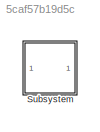
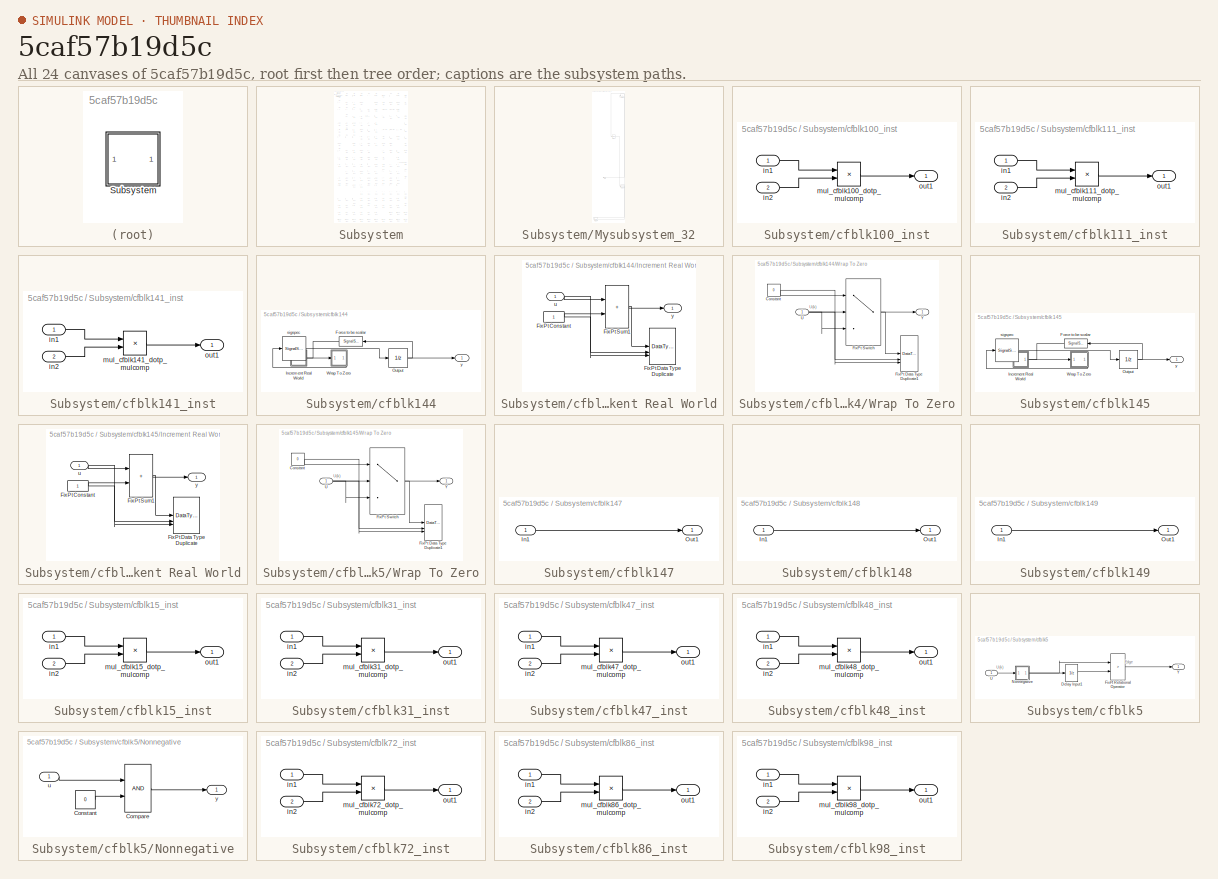
[diagram: thumbnail index - all 24 canvases of the model, root first then tree order]
MODEL slx_5caf57b19d5c
KIND model
CONFIG AbsTol = auto
CONFIG EnableMultiTasking = off
CONFIG FixedStep = auto
CONFIG MaxStep = auto
CONFIG MinStep = auto
CONFIG RelTol = 1e-3
CONFIG SampleTimeConstraint = Unconstrained
CONFIG SolverName = VariableStepAuto
CONFIG StartTime = 0.0
CONFIG StopTime = 10.0
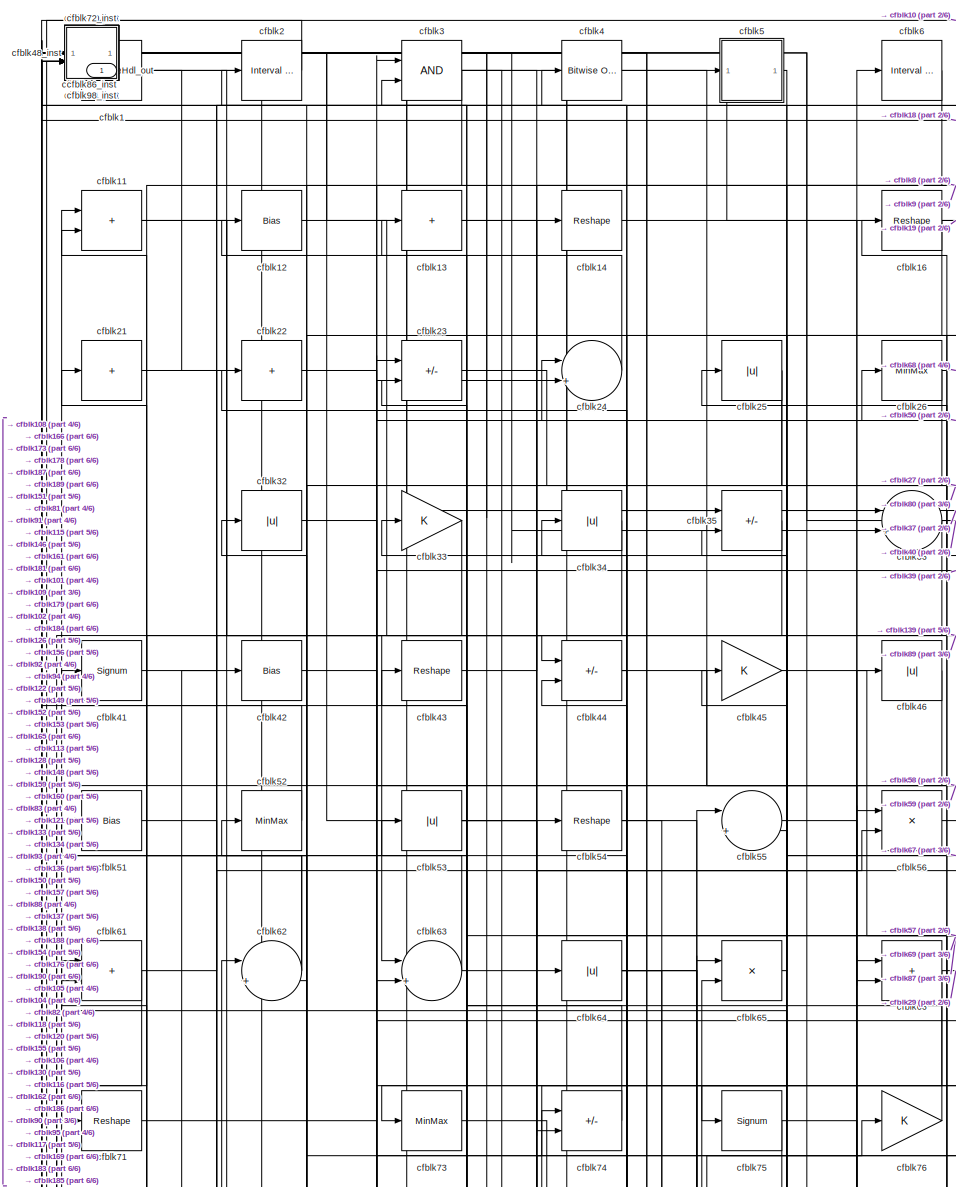
[diagram: Subsystem - part 1/6, top left region]
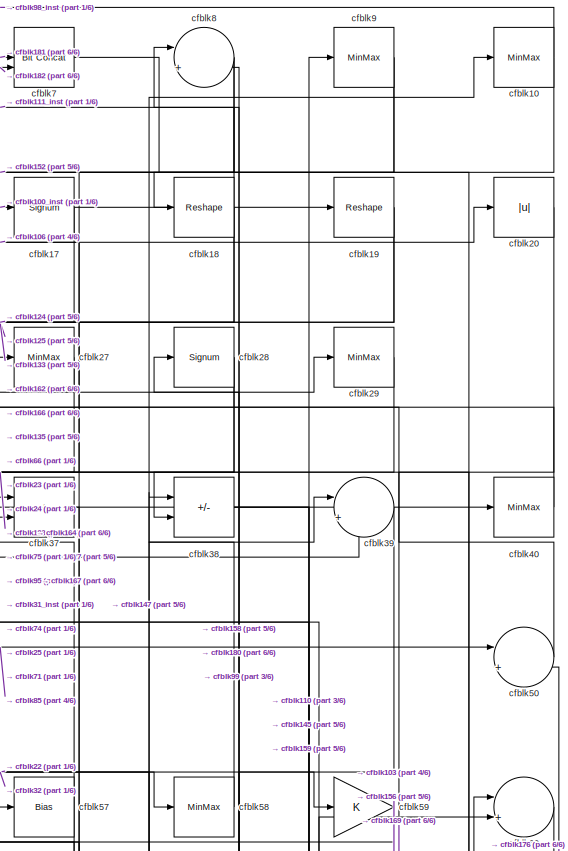
[diagram: Subsystem - part 2/6, top right region]
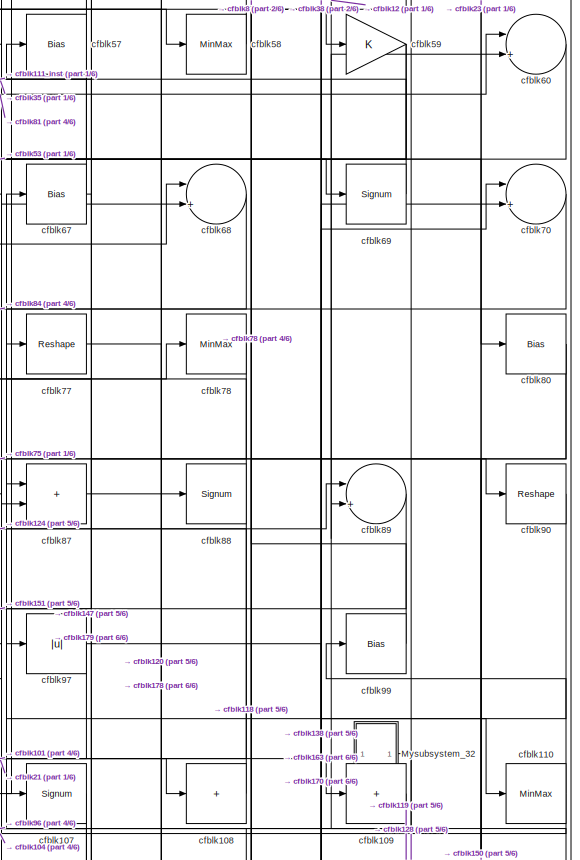
[diagram: Subsystem - part 3/6, middle right region]
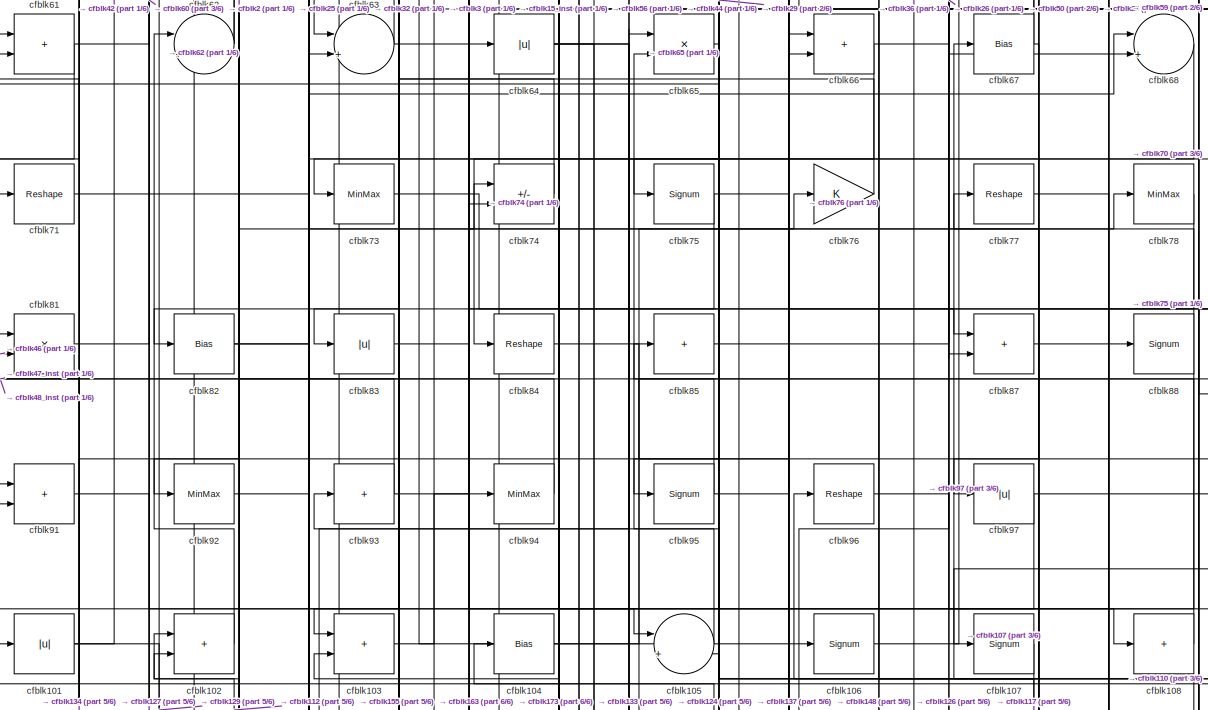
[diagram: Subsystem - part 4/6, full width, middle band]
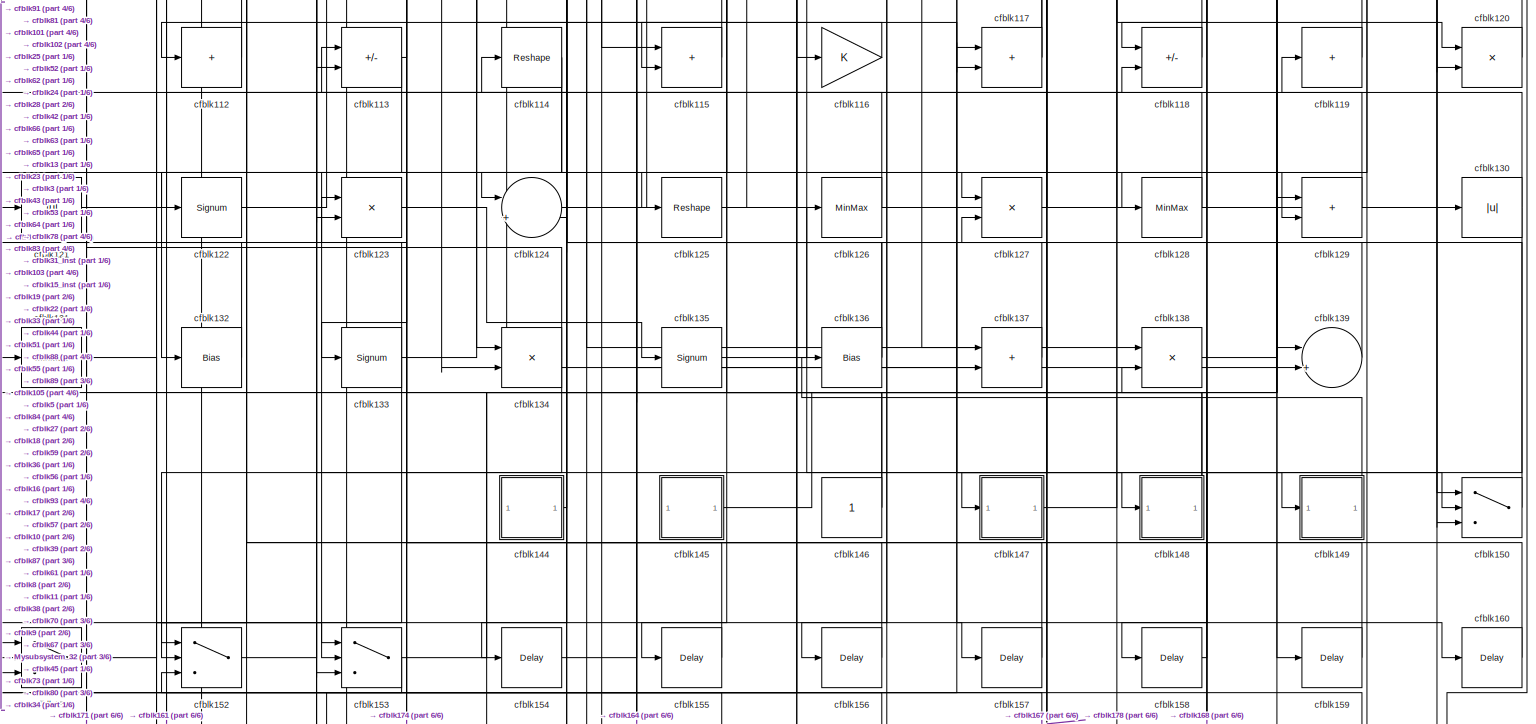
[diagram: Subsystem - part 5/6, full width, bottom band]
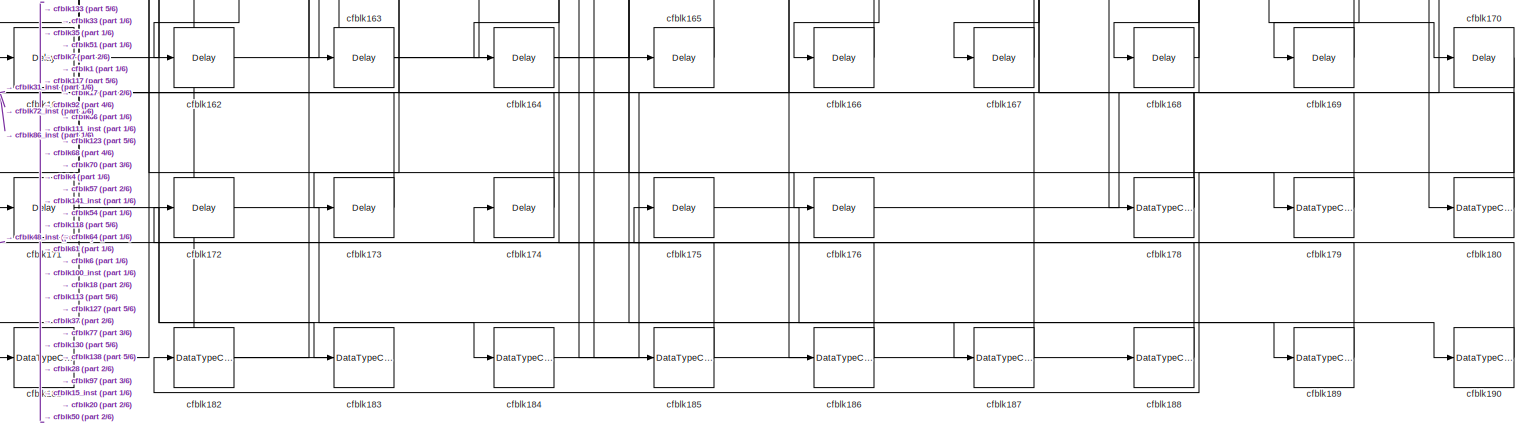
[diagram: Subsystem - part 6/6, full width, bottom band]
BLOCK [SubSystem] Subsystem
BLOCK [Outport] Subsystem/Hdl_out
  OutDataTypeStr = uint8
  SampleTime = 1
BLOCK [SubSystem] Subsystem/Mysubsystem_32
BLOCK [Outport] Subsystem/Mysubsystem_32/Out1
  SampleTime = 1
BLOCK [Reshape] Subsystem/Mysubsystem_32/cfblk140
BLOCK [Delay] Subsystem/Mysubsystem_32/cfblk177
  InputPortMap = u0
  SampleTime = 1
BLOCK [Sum] Subsystem/Mysubsystem_32/cfblk30
  IconShape = rectangular
  Inputs = +
BLOCK [Signum] Subsystem/Mysubsystem_32/cfblk79
BLOCK [Reference] Subsystem/cfblk1  REF=simulink/Logic and Bit
Operations/Bit Clear
  LibrarySourceBlock = hdlsllib/Logic and Bit\nOperations/Bit Clear
  SourceBlock = simulink/Logic and Bit\nOperations/Bit Clear
  SourceType = Bit Clear
BLOCK [MinMax] Subsystem/cfblk10
  OutDataTypeStr = uint8
BLOCK [SubSystem] Subsystem/cfblk100_inst
BLOCK [Inport] Subsystem/cfblk100_inst/in1
  OutDataTypeStr = uint8
  SampleTime = 1
BLOCK [Inport] Subsystem/cfblk100_inst/in2
  OutDataTypeStr = uint8
  Port = 2
  SampleTime = 1
BLOCK [Product] Subsystem/cfblk100_inst/mul_cfblk100_dotp_mulcomp
  Inputs = **
  OutDataTypeStr = uint8
  SampleTime = 1
BLOCK [Outport] Subsystem/cfblk100_inst/out1
  OutDataTypeStr = uint8
  SampleTime = 1
BLOCK [Abs] Subsystem/cfblk101
  OutDataTypeStr = uint8
  SaturateOnIntegerOverflow = off
BLOCK [Sum] Subsystem/cfblk102
  IconShape = rectangular
  OutDataTypeStr = uint8
BLOCK [Sum] Subsystem/cfblk103
  IconShape = rectangular
  OutDataTypeStr = uint8
BLOCK [Bias] Subsystem/cfblk104
  Bias = 0.0
  SaturateOnIntegerOverflow = off
BLOCK [Sum] Subsystem/cfblk105
  Inputs = |++
  OutDataTypeStr = uint8
BLOCK [Signum] Subsystem/cfblk106
BLOCK [Signum] Subsystem/cfblk107
BLOCK [Sum] Subsystem/cfblk108
  IconShape = rectangular
  Inputs = +
  OutDataTypeStr = uint8
BLOCK [Sum] Subsystem/cfblk109
  IconShape = rectangular
  Inputs = +
  OutDataTypeStr = uint8
BLOCK [Sum] Subsystem/cfblk11
  IconShape = rectangular
  OutDataTypeStr = uint8
BLOCK [MinMax] Subsystem/cfblk110
  OutDataTypeStr = uint8
BLOCK [SubSystem] Subsystem/cfblk111_inst
BLOCK [Inport] Subsystem/cfblk111_inst/in1
  OutDataTypeStr = uint8
  SampleTime = 1
BLOCK [Inport] Subsystem/cfblk111_inst/in2
  OutDataTypeStr = uint8
  Port = 2
  SampleTime = 1
BLOCK [Product] Subsystem/cfblk111_inst/mul_cfblk111_dotp_mulcomp
  Inputs = **
  OutDataTypeStr = uint8
  SampleTime = 1
BLOCK [Outport] Subsystem/cfblk111_inst/out1
  OutDataTypeStr = uint8
  SampleTime = 1
BLOCK [Sum] Subsystem/cfblk112
  IconShape = rectangular
  Inputs = +
  OutDataTypeStr = uint8
BLOCK [Sum] Subsystem/cfblk113
  IconShape = rectangular
  Inputs = +-
  OutDataTypeStr = uint8
BLOCK [Reshape] Subsystem/cfblk114
BLOCK [Sum] Subsystem/cfblk115
  IconShape = rectangular
  OutDataTypeStr = uint8
BLOCK [Gain] Subsystem/cfblk116
  OutDataTypeStr = uint8
BLOCK [Sum] Subsystem/cfblk117
  IconShape = rectangular
  OutDataTypeStr = uint8
BLOCK [Sum] Subsystem/cfblk118
  IconShape = rectangular
  Inputs = +-
  OutDataTypeStr = uint8
BLOCK [Sum] Subsystem/cfblk119
  IconShape = rectangular
  Inputs = +
  OutDataTypeStr = uint8
BLOCK [Bias] Subsystem/cfblk12
  Bias = 0.0
  SaturateOnIntegerOverflow = off
BLOCK [Product] Subsystem/cfblk120
  Inputs = */
  OutDataTypeStr = uint8
  RndMeth = Zero
  SaturateOnIntegerOverflow = on
BLOCK [Abs] Subsystem/cfblk121
  OutDataTypeStr = uint8
  SaturateOnIntegerOverflow = off
BLOCK [Signum] Subsystem/cfblk122
BLOCK [Product] Subsystem/cfblk123
  Inputs = */
  OutDataTypeStr = uint8
  RndMeth = Zero
  SaturateOnIntegerOverflow = on
BLOCK [Sum] Subsystem/cfblk124
  Inputs = |++
  OutDataTypeStr = uint8
BLOCK [Reshape] Subsystem/cfblk125
BLOCK [MinMax] Subsystem/cfblk126
  OutDataTypeStr = uint8
BLOCK [Product] Subsystem/cfblk127
  Inputs = */
  OutDataTypeStr = uint8
  RndMeth = Zero
  SaturateOnIntegerOverflow = on
BLOCK [MinMax] Subsystem/cfblk128
  OutDataTypeStr = uint8
BLOCK [Sum] Subsystem/cfblk129
  IconShape = rectangular
  OutDataTypeStr = uint8
BLOCK [Sum] Subsystem/cfblk13
  IconShape = rectangular
  Inputs = +
  OutDataTypeStr = uint8
BLOCK [Abs] Subsystem/cfblk130
  OutDataTypeStr = uint8
  SaturateOnIntegerOverflow = off
BLOCK [MinMax] Subsystem/cfblk131
  OutDataTypeStr = uint8
BLOCK [Bias] Subsystem/cfblk132
  Bias = 0.0
  SaturateOnIntegerOverflow = off
BLOCK [Signum] Subsystem/cfblk133
BLOCK [Product] Subsystem/cfblk134
  Inputs = */
  OutDataTypeStr = uint8
  RndMeth = Zero
  SaturateOnIntegerOverflow = on
BLOCK [Signum] Subsystem/cfblk135
BLOCK [Bias] Subsystem/cfblk136
  Bias = 0.0
  SaturateOnIntegerOverflow = off
BLOCK [Sum] Subsystem/cfblk137
  IconShape = rectangular
  OutDataTypeStr = uint8
BLOCK [Product] Subsystem/cfblk138
  Inputs = */
  OutDataTypeStr = uint8
  RndMeth = Zero
  SaturateOnIntegerOverflow = on
BLOCK [Sum] Subsystem/cfblk139
  Inputs = |++
  OutDataTypeStr = uint8
BLOCK [Reshape] Subsystem/cfblk14
BLOCK [SubSystem] Subsystem/cfblk141_inst
BLOCK [Inport] Subsystem/cfblk141_inst/in1
  OutDataTypeStr = uint8
  SampleTime = 1
BLOCK [Inport] Subsystem/cfblk141_inst/in2
  OutDataTypeStr = uint8
  Port = 2
  SampleTime = 1
BLOCK [Product] Subsystem/cfblk141_inst/mul_cfblk141_dotp_mulcomp
  Inputs = **
  OutDataTypeStr = uint8
  SampleTime = 1
BLOCK [Outport] Subsystem/cfblk141_inst/out1
  OutDataTypeStr = uint8
  SampleTime = 1
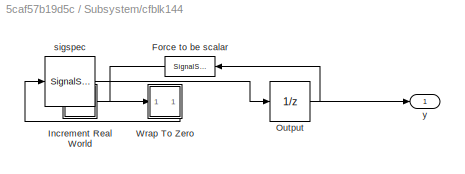
BLOCK [SubSystem] Subsystem/cfblk144
BLOCK [SignalSpecification] Subsystem/cfblk144/Force to be scalar
  Dimensions = 1
  DisableCoverage = on
BLOCK [SubSystem] Subsystem/cfblk144/Increment Real World
BLOCK [Constant] Subsystem/cfblk144/Increment Real World/FixPt Constant
  DisableCoverage = on
  OutDataTypeStr = Inherit: Inherit via back propagation
  SampleTime = -1
BLOCK [DataTypeDuplicate] Subsystem/cfblk144/Increment Real World/FixPt Data Type Duplicate
  DisableCoverage = on
  NumInputPorts = 3
BLOCK [Sum] Subsystem/cfblk144/Increment Real World/FixPt Sum1
  IconShape = rectangular
  InputSameDT = on
  LockScale = on
  OutDataTypeStr = Inherit: Inherit via back propagation
BLOCK [Inport] Subsystem/cfblk144/Increment Real World/u
  OutDataTypeStr = uint16
  SampleTime = 1
BLOCK [Outport] Subsystem/cfblk144/Increment Real World/y
  SampleTime = 1
BLOCK [UnitDelay] Subsystem/cfblk144/Output
  HasFrameUpgradeWarning = on
  InitialCondition = 0.0
  SampleTime = tsamp
BLOCK [SubSystem] Subsystem/cfblk144/Wrap To Zero
BLOCK [Constant] Subsystem/cfblk144/Wrap To Zero/Constant
  DisableCoverage = on
  OutDataTypeStr = Inherit: Inherit via back propagation
  SampleTime = -1
  Value = 0
BLOCK [DataTypeDuplicate] Subsystem/cfblk144/Wrap To Zero/FixPt Data Type Duplicate1
  DisableCoverage = on
  NumInputPorts = 3
BLOCK [Switch] Subsystem/cfblk144/Wrap To Zero/FixPt Switch
  Criteria = u2 > Threshold
  InputSameDT = off
  OutDataTypeStr = Inherit: Inherit via back propagation
  SaturateOnIntegerOverflow = off
  Threshold = Threshold
  ZeroCross = off
BLOCK [Inport] Subsystem/cfblk144/Wrap To Zero/U
  OutDataTypeStr = uint16
  SampleTime = 1
BLOCK [Outport] Subsystem/cfblk144/Wrap To Zero/Y
  SampleTime = 1
BLOCK [SignalSpecification] Subsystem/cfblk144/sigspec
  Dimensions = 1
  OutDataTypeStr = uint16
BLOCK [Outport] Subsystem/cfblk144/y
  SampleTime = 1
BLOCK [SubSystem] Subsystem/cfblk145
BLOCK [SignalSpecification] Subsystem/cfblk145/Force to be scalar
  Dimensions = 1
  DisableCoverage = on
BLOCK [SubSystem] Subsystem/cfblk145/Increment Real World
BLOCK [Constant] Subsystem/cfblk145/Increment Real World/FixPt Constant
  DisableCoverage = on
  OutDataTypeStr = Inherit: Inherit via back propagation
  SampleTime = -1
BLOCK [DataTypeDuplicate] Subsystem/cfblk145/Increment Real World/FixPt Data Type Duplicate
  DisableCoverage = on
  NumInputPorts = 3
BLOCK [Sum] Subsystem/cfblk145/Increment Real World/FixPt Sum1
  IconShape = rectangular
  InputSameDT = on
  LockScale = on
  OutDataTypeStr = Inherit: Inherit via back propagation
BLOCK [Inport] Subsystem/cfblk145/Increment Real World/u
  OutDataTypeStr = uint8
  SampleTime = 1
BLOCK [Outport] Subsystem/cfblk145/Increment Real World/y
  SampleTime = 1
BLOCK [UnitDelay] Subsystem/cfblk145/Output
  HasFrameUpgradeWarning = on
  InitialCondition = 0.0
  SampleTime = tsamp
BLOCK [SubSystem] Subsystem/cfblk145/Wrap To Zero
BLOCK [Constant] Subsystem/cfblk145/Wrap To Zero/Constant
  DisableCoverage = on
  OutDataTypeStr = Inherit: Inherit via back propagation
  SampleTime = -1
  Value = 0
BLOCK [DataTypeDuplicate] Subsystem/cfblk145/Wrap To Zero/FixPt Data Type Duplicate1
  DisableCoverage = on
  NumInputPorts = 3
BLOCK [Switch] Subsystem/cfblk145/Wrap To Zero/FixPt Switch
  Criteria = u2 > Threshold
  InputSameDT = off
  OutDataTypeStr = Inherit: Inherit via back propagation
  SaturateOnIntegerOverflow = off
  Threshold = Threshold
  ZeroCross = off
BLOCK [Inport] Subsystem/cfblk145/Wrap To Zero/U
  OutDataTypeStr = uint8
  SampleTime = 1
BLOCK [Outport] Subsystem/cfblk145/Wrap To Zero/Y
  SampleTime = 1
BLOCK [SignalSpecification] Subsystem/cfblk145/sigspec
  Dimensions = 1
  OutDataTypeStr = uint8
BLOCK [Outport] Subsystem/cfblk145/y
  SampleTime = 1
BLOCK [Constant] Subsystem/cfblk146
  OutDataTypeStr = uint8
  SampleTime = -1
BLOCK [SubSystem] Subsystem/cfblk147
BLOCK [Inport] Subsystem/cfblk147/In1
  OutDataTypeStr = uint8
  PortDimensions = 1
  SampleTime = 1
BLOCK [Outport] Subsystem/cfblk147/Out1
  SampleTime = 1
BLOCK [SubSystem] Subsystem/cfblk148
BLOCK [Inport] Subsystem/cfblk148/In1
  OutDataTypeStr = uint8
  PortDimensions = 1
  SampleTime = 1
BLOCK [Outport] Subsystem/cfblk148/Out1
  SampleTime = 1
BLOCK [SubSystem] Subsystem/cfblk149
BLOCK [Inport] Subsystem/cfblk149/In1
  OutDataTypeStr = uint8
  PortDimensions = 1
  SampleTime = 1
BLOCK [Outport] Subsystem/cfblk149/Out1
  SampleTime = 1
BLOCK [Switch] Subsystem/cfblk150
  InputSameDT = off
  OutDataTypeStr = uint8
  SaturateOnIntegerOverflow = off
BLOCK [Switch] Subsystem/cfblk151
  InputSameDT = off
  OutDataTypeStr = uint8
  SaturateOnIntegerOverflow = off
BLOCK [Switch] Subsystem/cfblk152
  InputSameDT = off
  OutDataTypeStr = uint8
  SaturateOnIntegerOverflow = off
BLOCK [Switch] Subsystem/cfblk153
  InputSameDT = off
  OutDataTypeStr = uint8
  SaturateOnIntegerOverflow = off
BLOCK [Delay] Subsystem/cfblk154
  InputPortMap = u0
  SampleTime = 1
BLOCK [Delay] Subsystem/cfblk155
  InputPortMap = u0
  SampleTime = 1
BLOCK [Delay] Subsystem/cfblk156
  InputPortMap = u0
  SampleTime = 1
BLOCK [Delay] Subsystem/cfblk157
  InputPortMap = u0
  SampleTime = 1
BLOCK [Delay] Subsystem/cfblk158
  InputPortMap = u0
  SampleTime = 1
BLOCK [Delay] Subsystem/cfblk159
  InputPortMap = u0
  SampleTime = 1
BLOCK [SubSystem] Subsystem/cfblk15_inst
BLOCK [Inport] Subsystem/cfblk15_inst/in1
  OutDataTypeStr = uint8
  SampleTime = 1
BLOCK [Inport] Subsystem/cfblk15_inst/in2
  OutDataTypeStr = uint8
  Port = 2
  SampleTime = 1
BLOCK [Product] Subsystem/cfblk15_inst/mul_cfblk15_dotp_mulcomp
  Inputs = **
  OutDataTypeStr = uint8
  SampleTime = 1
BLOCK [Outport] Subsystem/cfblk15_inst/out1
  OutDataTypeStr = uint8
  SampleTime = 1
BLOCK [Reshape] Subsystem/cfblk16
BLOCK [Delay] Subsystem/cfblk160
  InputPortMap = u0
  SampleTime = 1
BLOCK [Delay] Subsystem/cfblk161
  InputPortMap = u0
  SampleTime = 1
BLOCK [Delay] Subsystem/cfblk162
  InputPortMap = u0
  SampleTime = 1
BLOCK [Delay] Subsystem/cfblk163
  InputPortMap = u0
  SampleTime = 1
BLOCK [Delay] Subsystem/cfblk164
  InputPortMap = u0
  SampleTime = 1
BLOCK [Delay] Subsystem/cfblk165
  InputPortMap = u0
  SampleTime = 1
BLOCK [Delay] Subsystem/cfblk166
  InputPortMap = u0
  SampleTime = 1
BLOCK [Delay] Subsystem/cfblk167
  InputPortMap = u0
  SampleTime = 1
BLOCK [Delay] Subsystem/cfblk168
  InputPortMap = u0
  SampleTime = 1
BLOCK [Delay] Subsystem/cfblk169
  InputPortMap = u0
  SampleTime = 1
BLOCK [Signum] Subsystem/cfblk17
BLOCK [Delay] Subsystem/cfblk170
  InputPortMap = u0
  SampleTime = 1
BLOCK [Delay] Subsystem/cfblk171
  InputPortMap = u0
  SampleTime = 1
BLOCK [Delay] Subsystem/cfblk172
  InputPortMap = u0
  SampleTime = 1
BLOCK [Delay] Subsystem/cfblk173
  InputPortMap = u0
  SampleTime = 1
BLOCK [Delay] Subsystem/cfblk174
  InputPortMap = u0
  SampleTime = 1
BLOCK [Delay] Subsystem/cfblk175
  InputPortMap = u0
  SampleTime = 1
BLOCK [Delay] Subsystem/cfblk176
  InputPortMap = u0
  SampleTime = 1
BLOCK [DataTypeConversion] Subsystem/cfblk178
  OutDataTypeStr = uint8
  RndMeth = Floor
  SaturateOnIntegerOverflow = off
BLOCK [DataTypeConversion] Subsystem/cfblk179
  OutDataTypeStr = uint8
  RndMeth = Floor
  SaturateOnIntegerOverflow = off
BLOCK [Reshape] Subsystem/cfblk18
BLOCK [DataTypeConversion] Subsystem/cfblk180
  OutDataTypeStr = uint8
  RndMeth = Floor
  SaturateOnIntegerOverflow = off
BLOCK [DataTypeConversion] Subsystem/cfblk181
  OutDataTypeStr = uint8
  RndMeth = Floor
  SaturateOnIntegerOverflow = off
BLOCK [DataTypeConversion] Subsystem/cfblk182
  OutDataTypeStr = uint8
  RndMeth = Floor
  SaturateOnIntegerOverflow = off
BLOCK [DataTypeConversion] Subsystem/cfblk183
  OutDataTypeStr = uint8
  RndMeth = Floor
  SaturateOnIntegerOverflow = off
BLOCK [DataTypeConversion] Subsystem/cfblk184
  OutDataTypeStr = uint8
  RndMeth = Floor
  SaturateOnIntegerOverflow = off
BLOCK [DataTypeConversion] Subsystem/cfblk185
  OutDataTypeStr = uint8
  RndMeth = Floor
  SaturateOnIntegerOverflow = off
BLOCK [DataTypeConversion] Subsystem/cfblk186
  OutDataTypeStr = uint8
  RndMeth = Floor
  SaturateOnIntegerOverflow = off
BLOCK [DataTypeConversion] Subsystem/cfblk187
  OutDataTypeStr = uint8
  RndMeth = Floor
  SaturateOnIntegerOverflow = off
BLOCK [DataTypeConversion] Subsystem/cfblk188
  OutDataTypeStr = uint8
  RndMeth = Floor
  SaturateOnIntegerOverflow = off
BLOCK [DataTypeConversion] Subsystem/cfblk189
  OutDataTypeStr = uint8
  RndMeth = Floor
  SaturateOnIntegerOverflow = off
BLOCK [Reshape] Subsystem/cfblk19
BLOCK [DataTypeConversion] Subsystem/cfblk190
  OutDataTypeStr = uint8
  RndMeth = Floor
  SaturateOnIntegerOverflow = off
BLOCK [Reference] Subsystem/cfblk2  REF=hdlsllib/Logic and Bit
Operations/Interval Test
  SourceBlock = hdlsllib/Logic and Bit\nOperations/Interval Test
  SourceType = Interval Test
BLOCK [Abs] Subsystem/cfblk20
  OutDataTypeStr = uint8
  SaturateOnIntegerOverflow = off
BLOCK [Sum] Subsystem/cfblk21
  IconShape = rectangular
  Inputs = +
  OutDataTypeStr = uint8
BLOCK [Sum] Subsystem/cfblk22
  IconShape = rectangular
  Inputs = +
  OutDataTypeStr = uint8
BLOCK [Sum] Subsystem/cfblk23
  IconShape = rectangular
  Inputs = +-
  OutDataTypeStr = uint8
BLOCK [Sum] Subsystem/cfblk24
  Inputs = |++
  OutDataTypeStr = uint8
BLOCK [Abs] Subsystem/cfblk25
  OutDataTypeStr = uint8
  SaturateOnIntegerOverflow = off
BLOCK [MinMax] Subsystem/cfblk26
  OutDataTypeStr = uint8
BLOCK [MinMax] Subsystem/cfblk27
  OutDataTypeStr = uint8
BLOCK [Signum] Subsystem/cfblk28
BLOCK [MinMax] Subsystem/cfblk29
  OutDataTypeStr = uint8
BLOCK [Logic] Subsystem/cfblk3
  AllPortsSameDT = off
  OutDataTypeStr = boolean
BLOCK [SubSystem] Subsystem/cfblk31_inst
BLOCK [Inport] Subsystem/cfblk31_inst/in1
  OutDataTypeStr = uint8
  SampleTime = 1
BLOCK [Inport] Subsystem/cfblk31_inst/in2
  OutDataTypeStr = uint8
  Port = 2
  SampleTime = 1
BLOCK [Product] Subsystem/cfblk31_inst/mul_cfblk31_dotp_mulcomp
  Inputs = **
  OutDataTypeStr = uint8
  SampleTime = 1
BLOCK [Outport] Subsystem/cfblk31_inst/out1
  OutDataTypeStr = uint8
  SampleTime = 1
BLOCK [Abs] Subsystem/cfblk32
  OutDataTypeStr = uint8
  SaturateOnIntegerOverflow = off
BLOCK [Gain] Subsystem/cfblk33
  OutDataTypeStr = uint8
BLOCK [Abs] Subsystem/cfblk34
  OutDataTypeStr = uint8
  SaturateOnIntegerOverflow = off
BLOCK [Sum] Subsystem/cfblk35
  IconShape = rectangular
  Inputs = +-
  OutDataTypeStr = uint8
BLOCK [Sum] Subsystem/cfblk36
  Inputs = |++
  OutDataTypeStr = uint8
BLOCK [Sum] Subsystem/cfblk37
  IconShape = rectangular
  OutDataTypeStr = uint8
BLOCK [Sum] Subsystem/cfblk38
  IconShape = rectangular
  Inputs = +-
  OutDataTypeStr = uint8
BLOCK [Sum] Subsystem/cfblk39
  Inputs = |++
  OutDataTypeStr = uint8
BLOCK [Reference] Subsystem/cfblk4  REF=simulink/Logic and Bit
Operations/Bitwise
Operator
  LibrarySourceBlock = hdlsllib/Logic and Bit\nOperations/Bitwise\nOperator
  SourceBlock = simulink/Logic and Bit\nOperations/Bitwise\nOperator
  SourceType = Bitwise Operator
BLOCK [MinMax] Subsystem/cfblk40
  OutDataTypeStr = uint8
BLOCK [Signum] Subsystem/cfblk41
BLOCK [Bias] Subsystem/cfblk42
  Bias = 0.0
  SaturateOnIntegerOverflow = off
BLOCK [Reshape] Subsystem/cfblk43
BLOCK [Sum] Subsystem/cfblk44
  IconShape = rectangular
  Inputs = +-
  OutDataTypeStr = uint8
BLOCK [Gain] Subsystem/cfblk45
  OutDataTypeStr = uint8
BLOCK [Abs] Subsystem/cfblk46
  OutDataTypeStr = uint8
  SaturateOnIntegerOverflow = off
BLOCK [SubSystem] Subsystem/cfblk47_inst
BLOCK [Inport] Subsystem/cfblk47_inst/in1
  OutDataTypeStr = uint8
  SampleTime = 1
BLOCK [Inport] Subsystem/cfblk47_inst/in2
  OutDataTypeStr = uint8
  Port = 2
  SampleTime = 1
BLOCK [Product] Subsystem/cfblk47_inst/mul_cfblk47_dotp_mulcomp
  Inputs = **
  OutDataTypeStr = uint8
  SampleTime = 1
BLOCK [Outport] Subsystem/cfblk47_inst/out1
  OutDataTypeStr = uint8
  SampleTime = 1
BLOCK [SubSystem] Subsystem/cfblk48_inst
BLOCK [Inport] Subsystem/cfblk48_inst/in1
  OutDataTypeStr = uint8
  SampleTime = 1
BLOCK [Inport] Subsystem/cfblk48_inst/in2
  OutDataTypeStr = uint8
  Port = 2
  SampleTime = 1
BLOCK [Product] Subsystem/cfblk48_inst/mul_cfblk48_dotp_mulcomp
  Inputs = **
  OutDataTypeStr = uint8
  SampleTime = 1
BLOCK [Outport] Subsystem/cfblk48_inst/out1
  OutDataTypeStr = uint8
  SampleTime = 1
BLOCK [SubSystem] Subsystem/cfblk5
BLOCK [UnitDelay] Subsystem/cfblk5/Delay Input1
  Description = Store in Global RAM
  DisableCoverage = on
  HasFrameUpgradeWarning = on
  InitialCondition = vinit
  SampleTime = -1
BLOCK [RelationalOperator] Subsystem/cfblk5/FixPt Relational Operator
  InputSameDT = off
  Operator = >
  OutDataTypeStr = fixdt(0, 8)
  ZeroCross = off
BLOCK [SubSystem] Subsystem/cfblk5/Nonnegative
BLOCK [RelationalOperator] Subsystem/cfblk5/Nonnegative/Compare
  OutDataTypeStr = boolean
  ZeroCross = off
BLOCK [Constant] Subsystem/cfblk5/Nonnegative/Constant
  DisableCoverage = on
  OutDataTypeStr = Inherit: Inherit via back propagation
  PreserveConstantTs = on
  SampleTime = -1
  Value = 0
BLOCK [Inport] Subsystem/cfblk5/Nonnegative/u
  OutDataTypeStr = uint8
  SampleTime = 1
BLOCK [Outport] Subsystem/cfblk5/Nonnegative/y
  SampleTime = 1
BLOCK [Inport] Subsystem/cfblk5/U
  OutDataTypeStr = uint8
  SampleTime = 1
BLOCK [Outport] Subsystem/cfblk5/Y
  SampleTime = 1
BLOCK [Sum] Subsystem/cfblk50
  Inputs = |++
  OutDataTypeStr = uint8
BLOCK [Bias] Subsystem/cfblk51
  Bias = 0.0
  SaturateOnIntegerOverflow = off
BLOCK [MinMax] Subsystem/cfblk52
  OutDataTypeStr = uint8
BLOCK [Abs] Subsystem/cfblk53
  OutDataTypeStr = uint8
  SaturateOnIntegerOverflow = off
BLOCK [Reshape] Subsystem/cfblk54
BLOCK [Sum] Subsystem/cfblk55
  Inputs = |++
  OutDataTypeStr = uint8
BLOCK [Product] Subsystem/cfblk56
  Inputs = */
  OutDataTypeStr = uint8
  RndMeth = Zero
  SaturateOnIntegerOverflow = on
BLOCK [Bias] Subsystem/cfblk57
  Bias = 0.0
  SaturateOnIntegerOverflow = off
BLOCK [MinMax] Subsystem/cfblk58
  OutDataTypeStr = uint8
BLOCK [Gain] Subsystem/cfblk59
  OutDataTypeStr = uint8
BLOCK [Reference] Subsystem/cfblk6  REF=hdlsllib/Logic and Bit
Operations/Interval Test
  SourceBlock = hdlsllib/Logic and Bit\nOperations/Interval Test
  SourceType = Interval Test
BLOCK [Sum] Subsystem/cfblk60
  Inputs = |++
  OutDataTypeStr = uint8
BLOCK [Sum] Subsystem/cfblk61
  IconShape = rectangular
  OutDataTypeStr = uint8
BLOCK [Sum] Subsystem/cfblk62
  Inputs = |++
  OutDataTypeStr = uint8
BLOCK [Sum] Subsystem/cfblk63
  Inputs = |++
  OutDataTypeStr = uint8
BLOCK [Abs] Subsystem/cfblk64
  OutDataTypeStr = uint8
  SaturateOnIntegerOverflow = off
BLOCK [Product] Subsystem/cfblk65
  Inputs = */
  OutDataTypeStr = uint8
  RndMeth = Zero
  SaturateOnIntegerOverflow = on
BLOCK [Sum] Subsystem/cfblk66
  IconShape = rectangular
  OutDataTypeStr = uint8
BLOCK [Bias] Subsystem/cfblk67
  Bias = 0.0
  SaturateOnIntegerOverflow = off
BLOCK [Sum] Subsystem/cfblk68
  Inputs = |++
  OutDataTypeStr = uint8
BLOCK [Signum] Subsystem/cfblk69
BLOCK [Reference] Subsystem/cfblk7  REF=hdlsllib/Logic and Bit
Operations/Bit Concat
  SourceBlock = hdlsllib/Logic and Bit\nOperations/Bit Concat
  SourceType = Bit Concat
BLOCK [Sum] Subsystem/cfblk70
  Inputs = |++
  OutDataTypeStr = uint8
BLOCK [Reshape] Subsystem/cfblk71
BLOCK [SubSystem] Subsystem/cfblk72_inst
BLOCK [Inport] Subsystem/cfblk72_inst/in1
  OutDataTypeStr = uint8
  SampleTime = 1
BLOCK [Inport] Subsystem/cfblk72_inst/in2
  OutDataTypeStr = uint8
  Port = 2
  SampleTime = 1
BLOCK [Product] Subsystem/cfblk72_inst/mul_cfblk72_dotp_mulcomp
  Inputs = **
  OutDataTypeStr = uint8
  SampleTime = 1
BLOCK [Outport] Subsystem/cfblk72_inst/out1
  OutDataTypeStr = uint8
  SampleTime = 1
BLOCK [MinMax] Subsystem/cfblk73
  OutDataTypeStr = uint8
BLOCK [Sum] Subsystem/cfblk74
  IconShape = rectangular
  Inputs = +-
  OutDataTypeStr = uint8
BLOCK [Signum] Subsystem/cfblk75
BLOCK [Gain] Subsystem/cfblk76
  OutDataTypeStr = uint8
BLOCK [Reshape] Subsystem/cfblk77
BLOCK [MinMax] Subsystem/cfblk78
  OutDataTypeStr = uint8
BLOCK [Sum] Subsystem/cfblk8
  Inputs = |++
  OutDataTypeStr = uint8
BLOCK [Bias] Subsystem/cfblk80
  Bias = 0.0
  SaturateOnIntegerOverflow = off
BLOCK [Product] Subsystem/cfblk81
  Inputs = */
  OutDataTypeStr = uint8
  RndMeth = Zero
  SaturateOnIntegerOverflow = on
BLOCK [Bias] Subsystem/cfblk82
  Bias = 0.0
  SaturateOnIntegerOverflow = off
BLOCK [Abs] Subsystem/cfblk83
  OutDataTypeStr = uint8
  SaturateOnIntegerOverflow = off
BLOCK [Reshape] Subsystem/cfblk84
BLOCK [Sum] Subsystem/cfblk85
  IconShape = rectangular
  Inputs = +
  OutDataTypeStr = uint8
BLOCK [SubSystem] Subsystem/cfblk86_inst
BLOCK [Inport] Subsystem/cfblk86_inst/in1
  OutDataTypeStr = uint8
  SampleTime = 1
BLOCK [Inport] Subsystem/cfblk86_inst/in2
  OutDataTypeStr = uint8
  Port = 2
  SampleTime = 1
BLOCK [Product] Subsystem/cfblk86_inst/mul_cfblk86_dotp_mulcomp
  Inputs = **
  OutDataTypeStr = uint8
  SampleTime = 1
BLOCK [Outport] Subsystem/cfblk86_inst/out1
  OutDataTypeStr = uint8
  SampleTime = 1
BLOCK [Sum] Subsystem/cfblk87
  IconShape = rectangular
  OutDataTypeStr = uint8
BLOCK [Signum] Subsystem/cfblk88
BLOCK [Sum] Subsystem/cfblk89
  Inputs = |++
  OutDataTypeStr = uint8
BLOCK [MinMax] Subsystem/cfblk9
  OutDataTypeStr = uint8
BLOCK [Reshape] Subsystem/cfblk90
BLOCK [Sum] Subsystem/cfblk91
  IconShape = rectangular
  OutDataTypeStr = uint8
BLOCK [MinMax] Subsystem/cfblk92
  OutDataTypeStr = uint8
BLOCK [Sum] Subsystem/cfblk93
  IconShape = rectangular
  Inputs = +
  OutDataTypeStr = uint8
BLOCK [MinMax] Subsystem/cfblk94
  OutDataTypeStr = uint8
BLOCK [Signum] Subsystem/cfblk95
BLOCK [Reshape] Subsystem/cfblk96
BLOCK [Abs] Subsystem/cfblk97
  OutDataTypeStr = uint8
  SaturateOnIntegerOverflow = off
BLOCK [SubSystem] Subsystem/cfblk98_inst
BLOCK [Inport] Subsystem/cfblk98_inst/in1
  OutDataTypeStr = uint8
  SampleTime = 1
BLOCK [Inport] Subsystem/cfblk98_inst/in2
  OutDataTypeStr = uint8
  Port = 2
  SampleTime = 1
BLOCK [Product] Subsystem/cfblk98_inst/mul_cfblk98_dotp_mulcomp
  Inputs = **
  OutDataTypeStr = uint8
  SampleTime = 1
BLOCK [Outport] Subsystem/cfblk98_inst/out1
  OutDataTypeStr = uint8
  SampleTime = 1
BLOCK [Bias] Subsystem/cfblk99
  Bias = 0.0
  SaturateOnIntegerOverflow = off
ANNOTATION Subsystem/cfblk144/Wrap To Zero: U(k)
ANNOTATION Subsystem/cfblk145/Wrap To Zero: U(k)
ANNOTATION Subsystem/cfblk5: Edge
ANNOTATION Subsystem/cfblk5: U(k)
LINE Subsystem/Mysubsystem_32/cfblk140:1 -> Subsystem/Mysubsystem_32/cfblk177:1
LINE Subsystem/Mysubsystem_32/cfblk177:1 -> Subsystem/Mysubsystem_32/cfblk30:1
NET Subsystem/Mysubsystem_32/cfblk30:1 -> Subsystem/Mysubsystem_32/Out1:1, Subsystem/Mysubsystem_32/cfblk79:1
LINE Subsystem/Mysubsystem_32/cfblk79:1 -> Subsystem/Mysubsystem_32/cfblk140:1
LINE Subsystem/Mysubsystem_32:1 -> Subsystem/cfblk128:1
LINE Subsystem/cfblk100_inst/in1:1 -> Subsystem/cfblk100_inst/mul_cfblk100_dotp_mulcomp:1
LINE Subsystem/cfblk100_inst/in2:1 -> Subsystem/cfblk100_inst/mul_cfblk100_dotp_mulcomp:2
LINE Subsystem/cfblk100_inst/mul_cfblk100_dotp_mulcomp:1 -> Subsystem/cfblk100_inst/out1:1
NET Subsystem/cfblk100_inst:1 -> Subsystem/cfblk19:1, Subsystem/cfblk36:1
NET Subsystem/cfblk101:1 -> Subsystem/cfblk129:2, Subsystem/cfblk42:1
LINE Subsystem/cfblk102:1 -> Subsystem/cfblk62:1
LINE Subsystem/cfblk103:1 -> Subsystem/cfblk94:1
LINE Subsystem/cfblk104:1 -> Subsystem/cfblk76:1
LINE Subsystem/cfblk105:1 -> Subsystem/cfblk65:2
LINE Subsystem/cfblk106:1 -> Subsystem/cfblk20:1
LINE Subsystem/cfblk107:1 -> Subsystem/cfblk96:1
LINE Subsystem/cfblk108:1 -> Subsystem/cfblk48_inst:1
LINE Subsystem/cfblk109:1 -> Subsystem/cfblk60:2
NET Subsystem/cfblk10:1 -> Subsystem/cfblk18:1, Subsystem/cfblk98_inst:1
NET Subsystem/cfblk110:1 -> Subsystem/cfblk104:1, Subsystem/cfblk99:1
LINE Subsystem/cfblk111_inst/in1:1 -> Subsystem/cfblk111_inst/mul_cfblk111_dotp_mulcomp:1
LINE Subsystem/cfblk111_inst/in2:1 -> Subsystem/cfblk111_inst/mul_cfblk111_dotp_mulcomp:2
LINE Subsystem/cfblk111_inst/mul_cfblk111_dotp_mulcomp:1 -> Subsystem/cfblk111_inst/out1:1
LINE Subsystem/cfblk111_inst:1 -> Subsystem/cfblk165:1
LINE Subsystem/cfblk112:1 -> Subsystem/cfblk102:1
NET Subsystem/cfblk113:1 -> Subsystem/cfblk132:1, Subsystem/cfblk43:1
NET Subsystem/cfblk114:1 -> Subsystem/cfblk151:2, Subsystem/cfblk153:2
LINE Subsystem/cfblk115:1 -> Subsystem/cfblk11:1
LINE Subsystem/cfblk116:1 -> Subsystem/cfblk112:1
NET Subsystem/cfblk117:1 -> Subsystem/cfblk16:1, Subsystem/cfblk93:1
LINE Subsystem/cfblk118:1 -> Subsystem/cfblk61:1
LINE Subsystem/cfblk119:1 -> Subsystem/cfblk67:1
NET Subsystem/cfblk11:1 -> Subsystem/cfblk139:1, Subsystem/cfblk63:1
LINE Subsystem/cfblk120:1 -> Subsystem/cfblk34:1
LINE Subsystem/cfblk121:1 -> Subsystem/cfblk64:1
NET Subsystem/cfblk122:1 -> Subsystem/cfblk63:2, Subsystem/cfblk65:1
LINE Subsystem/cfblk123:1 -> Subsystem/cfblk135:1
LINE Subsystem/cfblk124:1 -> Subsystem/cfblk89:1
LINE Subsystem/cfblk125:1 -> Subsystem/cfblk148:1
LINE Subsystem/cfblk126:1 -> Subsystem/cfblk52:1
NET Subsystem/cfblk127:1 -> Subsystem/cfblk10:1, Subsystem/cfblk17:1, Subsystem/cfblk57:1
LINE Subsystem/cfblk128:1 -> Subsystem/cfblk13:1
LINE Subsystem/cfblk129:1 -> Subsystem/cfblk91:1
LINE Subsystem/cfblk12:1 -> Subsystem/cfblk89:2
NET Subsystem/cfblk130:1 -> Subsystem/cfblk119:1, Subsystem/cfblk168:1
LINE Subsystem/cfblk131:1 -> Subsystem/cfblk153:1
LINE Subsystem/cfblk132:1 -> Subsystem/cfblk121:1
NET Subsystem/cfblk133:1 -> Subsystem/cfblk171:1, Subsystem/cfblk78:1, Subsystem/cfblk98_inst:2
NET Subsystem/cfblk134:1 -> Subsystem/cfblk152:2, Subsystem/cfblk81:1
LINE Subsystem/cfblk135:1 -> Subsystem/cfblk27:1
NET Subsystem/cfblk136:1 -> Subsystem/cfblk15_inst:2, Subsystem/cfblk51:1
LINE Subsystem/cfblk137:1 -> Subsystem/cfblk103:2
LINE Subsystem/cfblk138:1 -> Subsystem/cfblk70:2
LINE Subsystem/cfblk139:1 -> Subsystem/cfblk33:1
LINE Subsystem/cfblk13:1 -> Subsystem/cfblk134:1
LINE Subsystem/cfblk141_inst/in1:1 -> Subsystem/cfblk141_inst/mul_cfblk141_dotp_mulcomp:1
LINE Subsystem/cfblk141_inst/in2:1 -> Subsystem/cfblk141_inst/mul_cfblk141_dotp_mulcomp:2
LINE Subsystem/cfblk141_inst/mul_cfblk141_dotp_mulcomp:1 -> Subsystem/cfblk141_inst/out1:1
LINE Subsystem/cfblk141_inst:1 -> Subsystem/cfblk188:1
LINE Subsystem/cfblk144:1 -> Subsystem/cfblk114:1
LINE Subsystem/cfblk145:1 -> Subsystem/cfblk9:1
NET Subsystem/cfblk146:1 -> Subsystem/cfblk11:2, Subsystem/cfblk131:1
LINE Subsystem/cfblk147/In1:1 -> Subsystem/cfblk147/Out1:1
LINE Subsystem/cfblk147:1 -> Subsystem/cfblk39:1
LINE Subsystem/cfblk148/In1:1 -> Subsystem/cfblk148/Out1:1
NET Subsystem/cfblk148:1 -> Subsystem/cfblk105:2, Subsystem/cfblk53:1
LINE Subsystem/cfblk149/In1:1 -> Subsystem/cfblk149/Out1:1
LINE Subsystem/cfblk149:1 -> Subsystem/cfblk136:1
LINE Subsystem/cfblk14:1 -> Subsystem/cfblk66:2
LINE Subsystem/cfblk150:1 -> Subsystem/cfblk22:1
LINE Subsystem/cfblk151:1 -> Subsystem/cfblk157:1
LINE Subsystem/cfblk152:1 -> Subsystem/cfblk24:2
NET Subsystem/cfblk153:1 -> Subsystem/cfblk129:1, Subsystem/cfblk152:3
LINE Subsystem/cfblk154:1 -> Subsystem/cfblk55:1
LINE Subsystem/cfblk155:1 -> Subsystem/cfblk102:2
LINE Subsystem/cfblk156:1 -> Subsystem/cfblk62:2
LINE Subsystem/cfblk157:1 -> Subsystem/cfblk44:2
LINE Subsystem/cfblk158:1 -> Subsystem/cfblk8:2
LINE Subsystem/cfblk159:1 -> Subsystem/cfblk23:2
LINE Subsystem/cfblk15_inst/in1:1 -> Subsystem/cfblk15_inst/mul_cfblk15_dotp_mulcomp:1
LINE Subsystem/cfblk15_inst/in2:1 -> Subsystem/cfblk15_inst/mul_cfblk15_dotp_mulcomp:2
LINE Subsystem/cfblk15_inst/mul_cfblk15_dotp_mulcomp:1 -> Subsystem/cfblk15_inst/out1:1
NET Subsystem/cfblk15_inst:1 -> Subsystem/cfblk106:1, Subsystem/cfblk130:1
LINE Subsystem/cfblk160:1 -> Subsystem/cfblk3:2
LINE Subsystem/cfblk161:1 -> Subsystem/cfblk117:1
LINE Subsystem/cfblk162:1 -> Subsystem/cfblk66:1
LINE Subsystem/cfblk163:1 -> Subsystem/cfblk70:1
LINE Subsystem/cfblk164:1 -> Subsystem/cfblk118:2
LINE Subsystem/cfblk165:1 -> Subsystem/cfblk61:2
LINE Subsystem/cfblk166:1 -> Subsystem/cfblk100_inst:2
LINE Subsystem/cfblk167:1 -> Subsystem/cfblk113:1
LINE Subsystem/cfblk168:1 -> Subsystem/cfblk138:2
LINE Subsystem/cfblk169:1 -> Subsystem/cfblk15_inst:1
NET Subsystem/cfblk16:1 -> Subsystem/cfblk115:2, Subsystem/cfblk150:2
LINE Subsystem/cfblk170:1 -> Subsystem/cfblk182:1
LINE Subsystem/cfblk171:1 -> Subsystem/cfblk183:1
LINE Subsystem/cfblk172:1 -> Subsystem/cfblk187:1
LINE Subsystem/cfblk173:1 -> Subsystem/cfblk86_inst:2
LINE Subsystem/cfblk174:1 -> Subsystem/cfblk123:1
LINE Subsystem/cfblk175:1 -> Subsystem/cfblk189:1
LINE Subsystem/cfblk176:1 -> Subsystem/cfblk50:2
NET Subsystem/cfblk178:1 -> Subsystem/cfblk127:2, Subsystem/cfblk72_inst:2
LINE Subsystem/cfblk179:1 -> Subsystem/cfblk77:1
LINE Subsystem/cfblk17:1 -> Subsystem/cfblk162:1
LINE Subsystem/cfblk180:1 -> Subsystem/cfblk28:1
LINE Subsystem/cfblk181:1 -> Subsystem/cfblk7:1
LINE Subsystem/cfblk182:1 -> Subsystem/cfblk7:2
LINE Subsystem/cfblk183:1 -> Subsystem/cfblk1:1
LINE Subsystem/cfblk184:1 -> Subsystem/cfblk6:1
LINE Subsystem/cfblk185:1 -> Subsystem/cfblk4:1
LINE Subsystem/cfblk186:1 -> Subsystem/cfblk174:1
LINE Subsystem/cfblk187:1 -> Subsystem/cfblk31_inst:1
LINE Subsystem/cfblk188:1 -> Subsystem/cfblk172:1
LINE Subsystem/cfblk189:1 -> Subsystem/cfblk48_inst:2
NET Subsystem/cfblk18:1 -> Subsystem/cfblk111_inst:2, Subsystem/cfblk125:1, Subsystem/cfblk166:1
LINE Subsystem/cfblk190:1 -> Subsystem/cfblk175:1
NET Subsystem/cfblk19:1 -> Subsystem/cfblk124:1, Subsystem/cfblk133:1
LINE Subsystem/cfblk1:1 -> Subsystem/cfblk184:1
LINE Subsystem/cfblk20:1 -> Subsystem/cfblk169:1
LINE Subsystem/cfblk21:1 -> Subsystem/cfblk109:1
NET Subsystem/cfblk22:1 -> Subsystem/Hdl_out:1, Subsystem/cfblk58:1
LINE Subsystem/cfblk23:1 -> Subsystem/cfblk80:1
LINE Subsystem/cfblk24:1 -> Subsystem/cfblk12:1
NET Subsystem/cfblk25:1 -> Subsystem/cfblk122:1, Subsystem/cfblk92:1
NET Subsystem/cfblk26:1 -> Subsystem/cfblk68:2, Subsystem/cfblk83:1
LINE Subsystem/cfblk27:1 -> Subsystem/cfblk75:1
NET Subsystem/cfblk28:1 -> Subsystem/cfblk123:2, Subsystem/cfblk38:2
LINE Subsystem/cfblk29:1 -> Subsystem/cfblk95:1
LINE Subsystem/cfblk2:1 -> Subsystem/cfblk72_inst:1
LINE Subsystem/cfblk31_inst/in1:1 -> Subsystem/cfblk31_inst/mul_cfblk31_dotp_mulcomp:1
LINE Subsystem/cfblk31_inst/in2:1 -> Subsystem/cfblk31_inst/mul_cfblk31_dotp_mulcomp:2
LINE Subsystem/cfblk31_inst/mul_cfblk31_dotp_mulcomp:1 -> Subsystem/cfblk31_inst/out1:1
NET Subsystem/cfblk31_inst:1 -> Subsystem/cfblk137:2, Subsystem/cfblk138:1, Subsystem/cfblk141_inst:1, Subsystem/cfblk141_inst:2, Subsystem/cfblk40:1
LINE Subsystem/cfblk32:1 -> Subsystem/cfblk59:1
LINE Subsystem/cfblk33:1 -> Subsystem/cfblk181:1
LINE Subsystem/cfblk34:1 -> Subsystem/cfblk73:1
LINE Subsystem/cfblk35:1 -> Subsystem/cfblk161:1
NET Subsystem/cfblk36:1 -> Subsystem/cfblk137:1, Subsystem/cfblk91:2
LINE Subsystem/cfblk37:1 -> Subsystem/cfblk167:1
NET Subsystem/cfblk38:1 -> Subsystem/cfblk110:1, Subsystem/cfblk159:1
LINE Subsystem/cfblk39:1 -> Subsystem/cfblk158:1
NET Subsystem/cfblk3:1 -> Subsystem/cfblk105:1, Subsystem/cfblk113:2, Subsystem/cfblk134:2
LINE Subsystem/cfblk40:1 -> Subsystem/cfblk24:1
LINE Subsystem/cfblk41:1 -> Subsystem/cfblk44:1
LINE Subsystem/cfblk42:1 -> Subsystem/cfblk149:1
LINE Subsystem/cfblk43:1 -> Subsystem/cfblk26:1
NET Subsystem/cfblk44:1 -> Subsystem/cfblk154:1, Subsystem/cfblk88:1
LINE Subsystem/cfblk45:1 -> Subsystem/cfblk120:2
LINE Subsystem/cfblk46:1 -> Subsystem/cfblk81:2
LINE Subsystem/cfblk47_inst/in1:1 -> Subsystem/cfblk47_inst/mul_cfblk47_dotp_mulcomp:1
LINE Subsystem/cfblk47_inst/in2:1 -> Subsystem/cfblk47_inst/mul_cfblk47_dotp_mulcomp:2
LINE Subsystem/cfblk47_inst/mul_cfblk47_dotp_mulcomp:1 -> Subsystem/cfblk47_inst/out1:1
LINE Subsystem/cfblk47_inst:1 -> Subsystem/cfblk35:1
LINE Subsystem/cfblk48_inst/in1:1 -> Subsystem/cfblk48_inst/mul_cfblk48_dotp_mulcomp:1
LINE Subsystem/cfblk48_inst/in2:1 -> Subsystem/cfblk48_inst/mul_cfblk48_dotp_mulcomp:2
LINE Subsystem/cfblk48_inst/mul_cfblk48_dotp_mulcomp:1 -> Subsystem/cfblk48_inst/out1:1
NET Subsystem/cfblk48_inst:1 -> Subsystem/cfblk36:2, Subsystem/cfblk54:1
LINE Subsystem/cfblk4:1 -> Subsystem/cfblk186:1
LINE Subsystem/cfblk50:1 -> Subsystem/cfblk23:1
LINE Subsystem/cfblk51:1 -> Subsystem/cfblk179:1
LINE Subsystem/cfblk52:1 -> Subsystem/cfblk100_inst:1
NET Subsystem/cfblk53:1 -> Subsystem/cfblk69:1, Subsystem/cfblk87:1
NET Subsystem/cfblk54:1 -> Subsystem/cfblk185:1, Subsystem/cfblk190:1
LINE Subsystem/cfblk55:1 -> Subsystem/cfblk116:1
LINE Subsystem/cfblk56:1 -> Subsystem/cfblk160:1
NET Subsystem/cfblk57:1 -> Subsystem/cfblk164:1, Subsystem/cfblk25:1
LINE Subsystem/cfblk58:1 -> Subsystem/cfblk38:1
NET Subsystem/cfblk59:1 -> Subsystem/cfblk103:1, Subsystem/cfblk156:1
LINE Subsystem/cfblk5:1 -> Subsystem/cfblk155:1
LINE Subsystem/cfblk60:1 -> Subsystem/cfblk87:2
NET Subsystem/cfblk61:1 -> Subsystem/cfblk151:3, Subsystem/cfblk3:1
NET Subsystem/cfblk62:1 -> Subsystem/cfblk21:1, Subsystem/cfblk86_inst:1
NET Subsystem/cfblk63:1 -> Subsystem/cfblk47_inst:1, Subsystem/cfblk56:2
NET Subsystem/cfblk64:1 -> Subsystem/cfblk115:1, Subsystem/cfblk139:2, Subsystem/cfblk176:1
LINE Subsystem/cfblk65:1 -> Subsystem/cfblk45:1
NET Subsystem/cfblk66:1 -> Subsystem/cfblk153:3, Subsystem/cfblk29:1
NET Subsystem/cfblk67:1 -> Subsystem/cfblk147:1, Subsystem/cfblk35:2
LINE Subsystem/cfblk68:1 -> Subsystem/cfblk173:1
LINE Subsystem/cfblk69:1 -> Subsystem/cfblk111_inst:1
LINE Subsystem/cfblk6:1 -> Subsystem/cfblk55:2
LINE Subsystem/cfblk70:1 -> Subsystem/cfblk84:1
LINE Subsystem/cfblk71:1 -> Subsystem/cfblk39:2
LINE Subsystem/cfblk72_inst/in1:1 -> Subsystem/cfblk72_inst/mul_cfblk72_dotp_mulcomp:1
LINE Subsystem/cfblk72_inst/in2:1 -> Subsystem/cfblk72_inst/mul_cfblk72_dotp_mulcomp:2
LINE Subsystem/cfblk72_inst/mul_cfblk72_dotp_mulcomp:1 -> Subsystem/cfblk72_inst/out1:1
LINE Subsystem/cfblk72_inst:1 -> Subsystem/cfblk5:1
LINE Subsystem/cfblk73:1 -> Subsystem/cfblk150:1
LINE Subsystem/cfblk74:1 -> Subsystem/cfblk31_inst:2
NET Subsystem/cfblk75:1 -> Subsystem/cfblk82:1, Subsystem/cfblk90:1
LINE Subsystem/cfblk76:1 -> Subsystem/cfblk41:1
LINE Subsystem/cfblk77:1 -> Subsystem/cfblk178:1
LINE Subsystem/cfblk78:1 -> Subsystem/cfblk97:1
LINE Subsystem/cfblk7:1 -> Subsystem/cfblk180:1
NET Subsystem/cfblk80:1 -> Subsystem/cfblk118:1, Subsystem/cfblk150:3
LINE Subsystem/cfblk81:1 -> Subsystem/cfblk60:1
NET Subsystem/cfblk82:1 -> Subsystem/cfblk68:1, Subsystem/cfblk74:1
LINE Subsystem/cfblk83:1 -> Subsystem/cfblk117:2
LINE Subsystem/cfblk84:1 -> Subsystem/cfblk126:1
LINE Subsystem/cfblk85:1 -> Subsystem/cfblk50:1
LINE Subsystem/cfblk86_inst/in1:1 -> Subsystem/cfblk86_inst/mul_cfblk86_dotp_mulcomp:1
LINE Subsystem/cfblk86_inst/in2:1 -> Subsystem/cfblk86_inst/mul_cfblk86_dotp_mulcomp:2
LINE Subsystem/cfblk86_inst/mul_cfblk86_dotp_mulcomp:1 -> Subsystem/cfblk86_inst/out1:1
LINE Subsystem/cfblk86_inst:1 -> Subsystem/cfblk14:1
LINE Subsystem/cfblk87:1 -> Subsystem/cfblk120:1
NET Subsystem/cfblk88:1 -> Subsystem/cfblk124:2, Subsystem/cfblk32:1
LINE Subsystem/cfblk89:1 -> Subsystem/cfblk151:1
NET Subsystem/cfblk8:1 -> Subsystem/cfblk152:1, Subsystem/cfblk71:1
LINE Subsystem/cfblk90:1 -> Subsystem/cfblk107:1
LINE Subsystem/cfblk91:1 -> Subsystem/cfblk127:1
LINE Subsystem/cfblk92:1 -> Subsystem/cfblk163:1
NET Subsystem/cfblk93:1 -> Subsystem/cfblk47_inst:2, Subsystem/cfblk56:1
LINE Subsystem/cfblk94:1 -> Subsystem/cfblk2:1
NET Subsystem/cfblk95:1 -> Subsystem/cfblk46:1, Subsystem/cfblk85:1
LINE Subsystem/cfblk96:1 -> Subsystem/cfblk108:1
NET Subsystem/cfblk97:1 -> Subsystem/cfblk101:1, Subsystem/cfblk170:1
LINE Subsystem/cfblk98_inst/in1:1 -> Subsystem/cfblk98_inst/mul_cfblk98_dotp_mulcomp:1
LINE Subsystem/cfblk98_inst/in2:1 -> Subsystem/cfblk98_inst/mul_cfblk98_dotp_mulcomp:2
LINE Subsystem/cfblk98_inst/mul_cfblk98_dotp_mulcomp:1 -> Subsystem/cfblk98_inst/out1:1
LINE Subsystem/cfblk98_inst:1 -> Subsystem/cfblk37:1
LINE Subsystem/cfblk99:1 -> Subsystem/cfblk8:1
NET Subsystem/cfblk9:1 -> Subsystem/cfblk37:2, Subsystem/cfblk74:2
note: NET lines group one-source signal fan-out (src -> all destinations, sorted); 1:1 wires keep LINE
